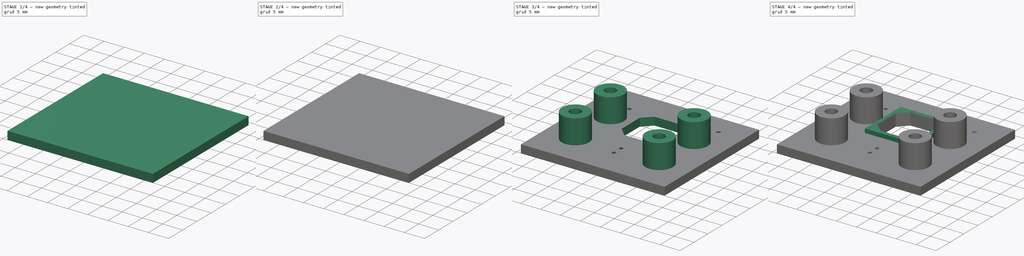
[diagram: build sequence overview — one tinted view per stage of 4, left to right]
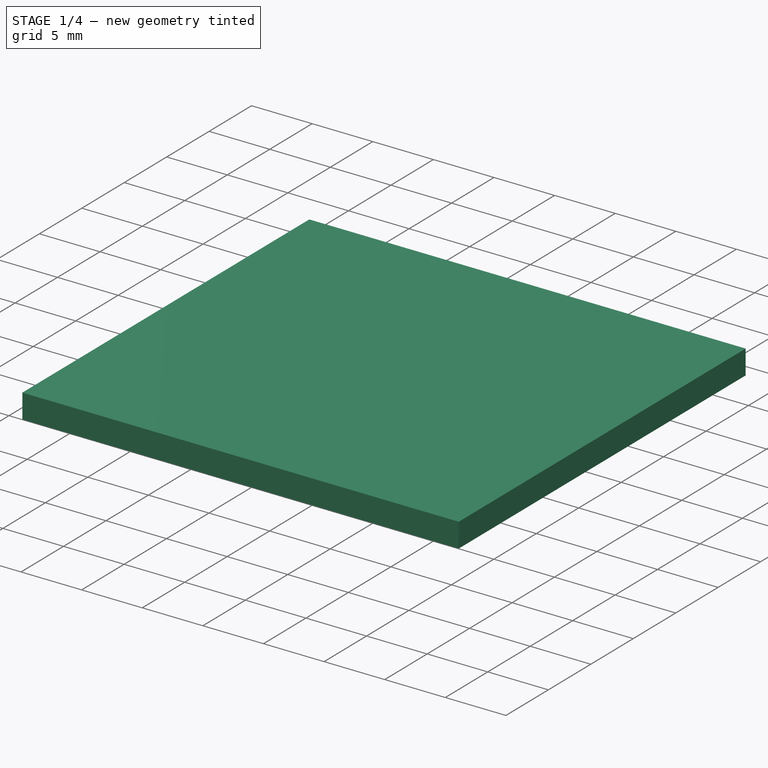
[diagram: stage 1 of 4 — iso view after this stage's code; geometry added in this stage tinted green]
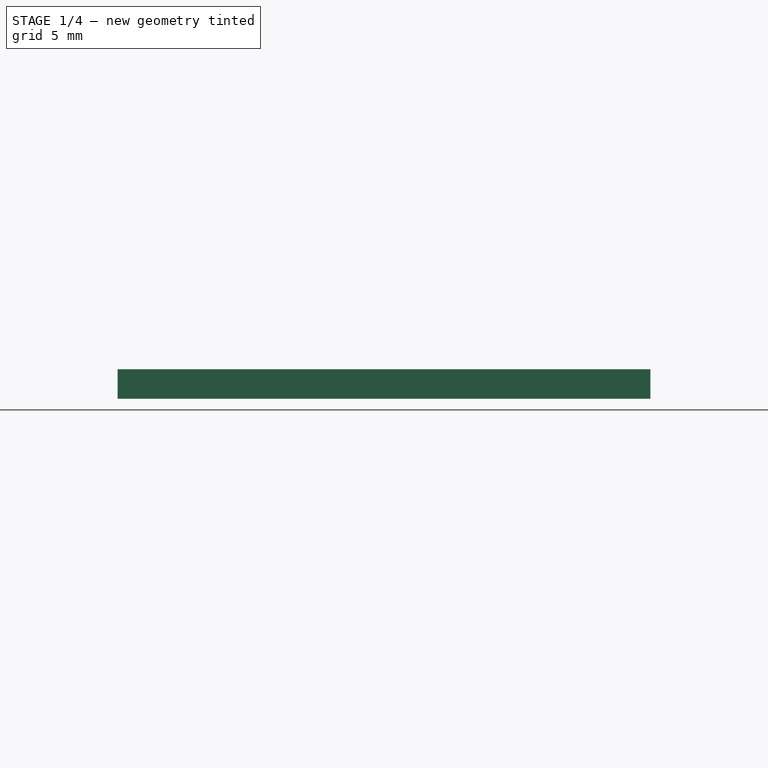
[diagram: stage 1 of 4 — front view after this stage's code; geometry added in this stage tinted green]
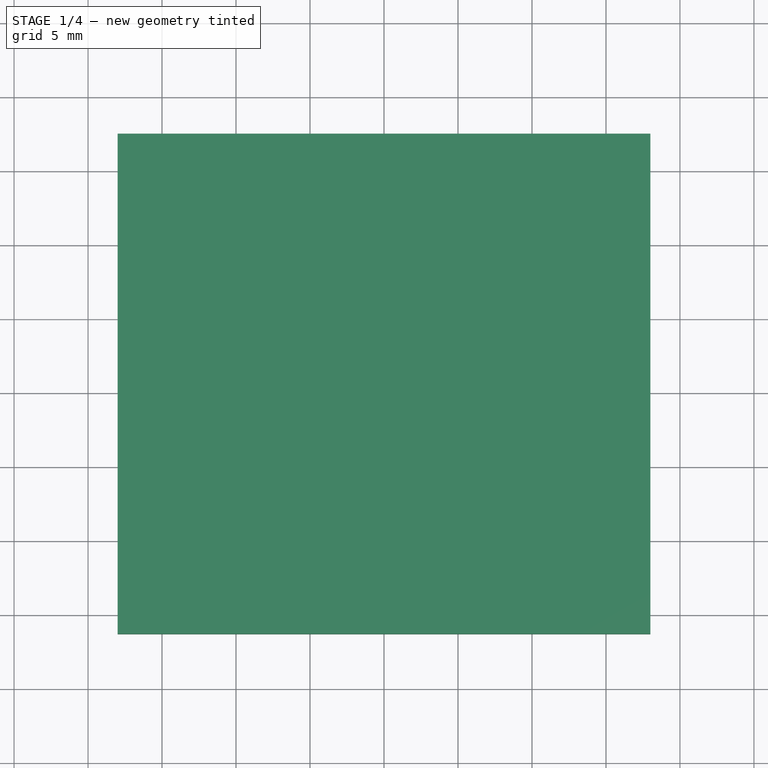
[diagram: stage 1 of 4 — top view after this stage's code; geometry added in this stage tinted green]
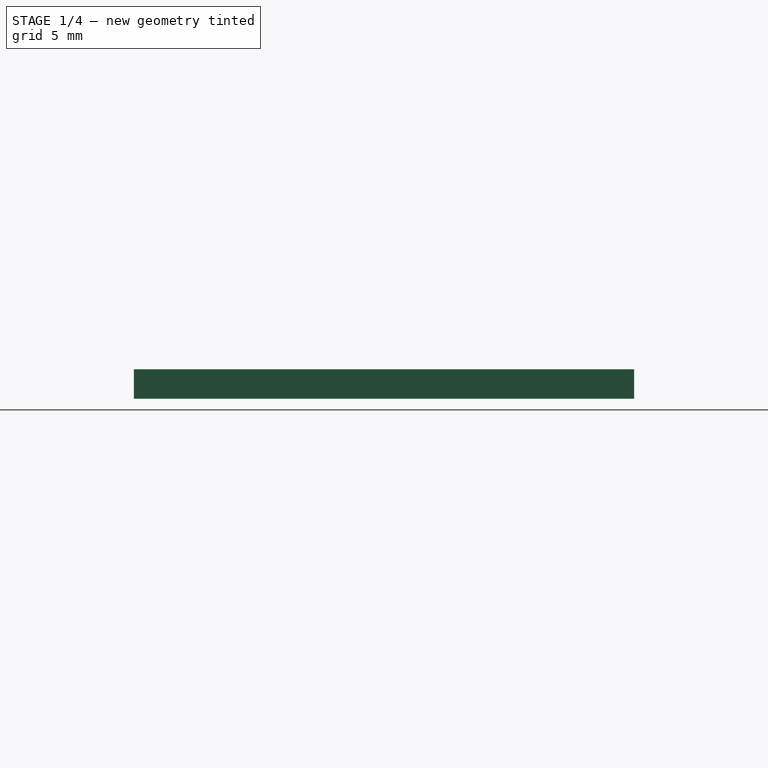
[diagram: stage 1 of 4 — right view after this stage's code; geometry added in this stage tinted green]
FCSTD DOCUMENT  (FreeCAD 2024.1R35694 (Git))
Label: probe-cam
License: All rights reserved
LicenseURL: https://en.wikipedia.org/wiki/All_rights_reserved
objects: Sketcher::SketchObject×10, PartDesign::Pad×3, PartDesign::Plane×3, PartDesign::Groove×3, PartDesign::Pocket×2, Image::ImagePlane×1, Spreadsheet::Sheet×1, PartDesign::Fillet×1, PartDesign::Body×1
note: 32 computed .brp shape members not serialized (recipe doc carries the construction recipe); baked Part::Feature solids carry a one-line shape summary decoded from their .brp

FEATURE [Image::ImagePlane] Screenshot_from_2024_02_23_09_25_00  label="Screenshot from 2024-02-23 09-25-00"
  Placement = pos=(2,2,0) rot=(0,0,1;0rad)
  XSize = 65.0233
  YSize = 47.6637
FEATURE [Sketcher::SketchObject] Sketch001  label="Camera"
  FullyConstrained = true
  MapMode = 5
  Support = -> [XY_Plane]
  sketch-geometry (8):
    g0: LineSegment StartX=-5.4 StartY=5.4 StartZ=0 EndX=-5.4 EndY=-5.4 EndZ=0
    g1: LineSegment StartX=-5.4 StartY=-5.4 StartZ=0 EndX=5.4 EndY=-5.4 EndZ=0
    g2: LineSegment StartX=5.4 StartY=-5.4 StartZ=0 EndX=5.4 EndY=5.4 EndZ=0
    g3: LineSegment StartX=5.4 StartY=5.4 StartZ=0 EndX=-5.4 EndY=5.4 EndZ=0
    g4: GeomPoint X=0 Y=5.4 Z=0
    g5: GeomPoint X=-5.4 Y=0 Z=0
    g6: Circle CenterX=0 CenterY=0 CenterZ=0 NormalX=0 NormalY=0 NormalZ=1 AngleXU=0 Radius=1.3
    g7: Circle CenterX=0 CenterY=0 CenterZ=0 NormalX=0 NormalY=0 NormalZ=1 AngleXU=0 Radius=2.875
  constraints (18):
    c: Coincident(g0,g1)
    c: Coincident(g1,g2)
    c: Coincident(g2,g3)
    c: Coincident(g3,g0)
    c: Vertical(g0)
    c: Horizontal(g1)
    c: DistanceX(g3,g3) = 10.8
    c: DistanceY(g2,g2) = 10.8
    c: PointOnObject(g4,g3)
    c: PointOnObject(g5,g0)
    c: Radius(g7) = 2.875
    c: Coincident(g7,g6)
    c: Horizontal(g6,g5)
    c: Vertical(g6,g4)
    c: Diameter(g6) = 2.6
    c: Symmetric(g0,g1,g6)
    c: Symmetric(g2,g0,g6)
    c: Coincident(g6,g-1)
FEATURE [Sketcher::SketchObject] Sketch002  label="PCB Outline"
  ExternalGeometry = -> [Sketch001]
  FullyConstrained = false
  MapMode = 5
  Support = -> [XY_Plane]
  sketch-geometry (10):
    g0: LineSegment StartX=-12.5 StartY=9.462 StartZ=0 EndX=-12.5 EndY=-14.4 EndZ=0
    g1: LineSegment StartX=-12.5 StartY=-14.4 StartZ=0 EndX=12.5 EndY=-14.4 EndZ=0
    g2: LineSegment StartX=12.5 StartY=-14.4 StartZ=0 EndX=12.5 EndY=9.462 EndZ=0
    g3: LineSegment StartX=12.5 StartY=9.462 StartZ=0 EndX=-12.5 EndY=9.462 EndZ=0
    g4: GeomPoint X=12.5 Y=-14.4 Z=0
    g5: GeomPoint X=-12.5 Y=-14.4 Z=0
    g6: LineSegment StartX=-18 StartY=12.5275 StartZ=0 EndX=-18 EndY=-21.2818 EndZ=0
    g7: LineSegment StartX=-18 StartY=-21.2818 StartZ=0 EndX=18 EndY=-21.2818 EndZ=0
    g8: LineSegment StartX=18 StartY=-21.2818 StartZ=0 EndX=18 EndY=12.5275 EndZ=0
    g9: LineSegment StartX=18 StartY=12.5275 StartZ=0 EndX=-18 EndY=12.5275 EndZ=0
  constraints (21):
    c: Vertical(g0)
    c: Vertical(g2)
    c: DistanceX(g3,g3) = 25
    c: Coincident(g3,g0)
    c: Coincident(g3,g2)
    c: DistanceY(g5,g0) = 23.862
    c: Horizontal(g1)
    c: Symmetric(g0,g2,g-2)
    c: Distance(g-3,g1) = 14.4
    c: Coincident(g0,g5)
    c: Coincident(g0,g1)
    c: Coincident(g1,g4)
    c: Coincident(g2,g1)
    c: Coincident(g6,g7)
    c: Coincident(g7,g8)
    c: Coincident(g8,g9)
    c: Coincident(g9,g6)
    c: Vertical(g6)
    c: Vertical(g8)
    c: Horizontal(g9)
    c: Symmetric(g6,g7,g-2)
FEATURE [Sketcher::SketchObject] Sketch003  label="Mount"
  ExternalGeometry = -> [Sketch002]
  FullyConstrained = true
  MapMode = 5
  Support = -> [XY_Plane]
  expr: Constraints[0] = <<Spreadsheet>>.cam_screw_hole / 2
  expr: Constraints[12] = <<Spreadsheet>>.cam_screw_hole + <<Spreadsheet>>.cam_screw_hole_thickness * 2
  expr: Constraints[14] = <<Spreadsheet>>.cam_screw_hole + <<Spreadsheet>>.cam_screw_hole_thickness * 2
  expr: Constraints[17] = <<Spreadsheet>>.cam_screw_hole + <<Spreadsheet>>.cam_screw_hole_thickness * 2
  expr: Constraints[18] = <<Spreadsheet>>.cam_screw_hole + <<Spreadsheet>>.cam_screw_hole_thickness * 2
  expr: Constraints[1] = <<Spreadsheet>>.cam_screw_hole / 2
  expr: Constraints[2] = <<Spreadsheet>>.cam_screw_hole / 2
  expr: Constraints[3] = <<Spreadsheet>>.cam_screw_hole / 2
  sketch-geometry (8):
    g0: Circle CenterX=-10.5 CenterY=0 CenterZ=0 NormalX=0 NormalY=0 NormalZ=1 AngleXU=0 Radius=1.4
    g1: Circle CenterX=10.5 CenterY=0 CenterZ=0 NormalX=0 NormalY=0 NormalZ=1 AngleXU=0 Radius=1.4
    g2: Circle CenterX=10.5 CenterY=-12.5 CenterZ=0 NormalX=0 NormalY=0 NormalZ=1 AngleXU=0 Radius=1.4
    g3: Circle CenterX=-10.5 CenterY=-12.5 CenterZ=0 NormalX=0 NormalY=0 NormalZ=1 AngleXU=0 Radius=1.4
    g4: Circle CenterX=-10.5 CenterY=-12.5 CenterZ=0 NormalX=0 NormalY=0 NormalZ=1 AngleXU=0 Radius=3.4
    g5: Circle CenterX=10.5 CenterY=-12.5 CenterZ=0 NormalX=0 NormalY=0 NormalZ=1 AngleXU=0 Radius=3.4
    g6: Circle CenterX=-10.5 CenterY=0 CenterZ=0 NormalX=0 NormalY=0 NormalZ=1 AngleXU=0 Radius=3.4
    g7: Circle CenterX=10.5 CenterY=0 CenterZ=0 NormalX=0 NormalY=0 NormalZ=1 AngleXU=0 Radius=3.4
  constraints (19):
    c: Radius(g0) = 1.4
    c: Radius(g1) = 1.4
    c: Radius(g2) = 1.4
    c: Radius(g3) = 1.4
    c: Horizontal(g0,g1)
    c: Vertical(g1,g2)
    c: Vertical(g3,g0)
    c: DistanceX(g0,g1) = 21
    c: DistanceY(g3,g0) = 12.5
    c: Horizontal(g2,g3)
    c: Symmetric(g0,g1,g-1)
    c: Coincident(g4,g3)
    c: Diameter(g4) = 6.8
    c: Coincident(g5,g2)
    c: Diameter(g5) = 6.8
    c: Coincident(g6,g0)
    c: Coincident(g7,g1)
    c: Diameter(g7) = 6.8
    c: Diameter(g6) = 6.8
FEATURE [PartDesign::Pad] Pad
  Direction = (0,0,1)
  Length = 2
  Length2 = 10
  Profile = -> Sketch002
  ReferenceAxis = -> Sketch002 [N_Axis]
  Refine = true
  Type = 0
FEATURE [Sketcher::SketchObject] Sketch004  label="led indent"
  FullyConstrained = false
  MapMode = 5
  Support = -> [XY_Plane]
  sketch-geometry (9):
    g0: Circle CenterX=0 CenterY=-12.3876 CenterZ=0 NormalX=0 NormalY=0 NormalZ=1 AngleXU=0 Radius=1.9
    g1: Circle CenterX=10.728 CenterY=6.19379 CenterZ=0 NormalX=0 NormalY=0 NormalZ=1 AngleXU=0 Radius=1.9
    g2: Circle CenterX=-10.728 CenterY=6.19379 CenterZ=0 NormalX=0 NormalY=0 NormalZ=1 AngleXU=0 Radius=1.9
    g3: LineSegment StartX=-10.728 StartY=6.19379 StartZ=0 EndX=10.728 EndY=6.19379 EndZ=0
    g4: LineSegment StartX=10.728 StartY=6.19379 StartZ=0 EndX=0 EndY=-12.3876 EndZ=0
    g5: LineSegment StartX=0 StartY=-12.3876 StartZ=0 EndX=-10.728 EndY=6.19379 EndZ=0
    g6: LineSegment StartX=-10.728 StartY=6.19379 StartZ=0 EndX=0 EndY=0 EndZ=0
    g7: LineSegment StartX=0 StartY=0 StartZ=0 EndX=10.728 EndY=6.19379 EndZ=0
    g8: LineSegment StartX=0 StartY=0 StartZ=0 EndX=0 EndY=-12.3876 EndZ=0
  constraints (20):
    c: PointOnObject(g0,g-2)
    c: Diameter(g0) = 3.8
    c: Equal(g0,g1)
    c: Equal(g0,g2)
    c: Coincident(g3,g2)
    c: Coincident(g3,g1)
    c: Horizontal(g3)
    c: Coincident(g4,g1)
    c: Coincident(g4,g0)
    c: Angle(g5,g3) = 1.0472
    c: Angle(g3,g4) = 1.0472
    c: Coincident(g0,g5)
    c: Coincident(g2,g5)
    c: Coincident(g6,g2)
    c: Coincident(g6,g-1)
    c: Coincident(g7,g6)
    c: Coincident(g7,g1)
    c: Coincident(g8,g6)
    c: Coincident(g8,g0)
    c: Equal(g7,g8)
FEATURE [Sketcher::SketchObject] Sketch005
  ExternalGeometry = -> [Sketch001]
  FullyConstrained = false
  MapMode = 5
  Support = -> [XY_Plane]
  sketch-geometry (9):
    g0: LineSegment StartX=-5.4 StartY=-3.23293 StartZ=0 EndX=-3.22051 EndY=-5.4 EndZ=0
    g1: LineSegment StartX=3.23293 StartY=-5.4 StartZ=0 EndX=5.4 EndY=-3.22051 EndZ=0
    g2: LineSegment StartX=5.4 StartY=3.23293 StartZ=0 EndX=3.22051 EndY=5.4 EndZ=0
    g3: LineSegment StartX=-3.23293 StartY=5.4 StartZ=0 EndX=-5.4 EndY=3.22051 EndZ=0
    g4: GeomPoint X=0 Y=0 Z=0
    g5: LineSegment StartX=-3.22051 StartY=-5.4 StartZ=0 EndX=3.23293 EndY=-5.4 EndZ=0
    g6: LineSegment StartX=-5.4 StartY=-3.23293 StartZ=0 EndX=-5.4 EndY=3.22051 EndZ=0
    g7: LineSegment StartX=-3.23293 StartY=5.4 StartZ=0 EndX=3.22051 EndY=5.4 EndZ=0
    g8: LineSegment StartX=5.4 StartY=3.23293 StartZ=0 EndX=5.4 EndY=-3.22051 EndZ=0
  constraints (21):
    c: Coincident(g4,g-1)
    c: Perpendicular(g3,g2)
    c: Perpendicular(g0,g3)
    c: Perpendicular(g1,g0)
    c: PointOnObject(g5,g-6)
    c: PointOnObject(g5,g-6)
    c: PointOnObject(g7,g2)
    c: Horizontal(g7)
    c: Vertical(g8)
    c: PointOnObject(g8,g-5)
    c: PointOnObject(g7,g-4)
    c: PointOnObject(g6,g-3)
    c: PointOnObject(g6,g-3)
    c: Coincident(g3,g6)
    c: Coincident(g0,g6)
    c: Coincident(g0,g5)
    c: Coincident(g1,g5)
    c: Coincident(g1,g8)
    c: Coincident(g2,g8)
    c: PointOnObject(g2,g-4)
    c: Coincident(g3,g7)
FEATURE [Spreadsheet::Sheet] Spreadsheet
  cells = B3='leg width; C3(leg_width)=0.9; B4='leg height; C4(leg_height)=0.8; B5='cam mounting hole diameter; C5(cam_screw_hole)=2.8; B6='cam mounting hole thickness; C6(cam_screw_hole_thickness)=2; B13='eef mount hole size; C13=4.7; B14='eef mount hole distance; C14(eef_dist)=7.08
FEATURE [PartDesign::Plane] DatumPlane
  Length = 60
  MapMode = 6
  Placement = pos=(1.9,-12.3876,0) rot=(1,0,0;1.5708rad)
  ResizeMode = 0
  Support = -> [Sketch004,Pad]
  Width = 60
FEATURE [PartDesign::Plane] DatumPlane001
  Length = 60
  MapMode = 6
  Placement = pos=(-8.82796,6.19379,0) rot=(1,0,0;1.5708rad)
  ResizeMode = 0
  Support = -> [Sketch004,Pad]
  Width = 60
FEATURE [Sketcher::SketchObject] Sketch006  label="indend 1"
  ExternalGeometry = -> [Sketch004]
  FullyConstrained = true
  MapMode = 1
  Placement = pos=(1.9,-12.3876,0) rot=(1,0,0;1.5708rad)
  Support = -> [Sketch004]
  sketch-geometry (3):
    g0: LineSegment StartX=-3.8 StartY=1.9e-15 StartZ=0 EndX=-1.9 EndY=0 EndZ=0
    g1: ArcOfCircle CenterX=-1.9 CenterY=-0.5 CenterZ=0 NormalX=0 NormalY=0 NormalZ=1 AngleXU=0 Radius=1.96469 StartAngle=1.5708 EndAngle=2.88427
    g2: LineSegment StartX=-1.9 StartY=0 StartZ=0 EndX=-1.9 EndY=1.46469 EndZ=0
  constraints (8):
    c: Coincident(g0,g-3)
    c: Coincident(g1,g0)
    c: Vertical(g2)
    c: Coincident(g1,g2)
    c: Coincident(g0,g2)
    c: Vertical(g0,g1)
    c: DistanceY(g1,g0) = 0.5
    c: Symmetric(g0,g-3,g0)
FEATURE [Sketcher::SketchObject] Sketch007  label="indent 2"
  ExternalGeometry = -> [Sketch004]
  FullyConstrained = true
  MapMode = 1
  Placement = pos=(12.628,6.19379,0) rot=(1,0,0;1.5708rad)
  Support = -> [Sketch004]
  expr: Constraints[5] = Sketch006.Constraints[6]
  sketch-geometry (3):
    g0: LineSegment StartX=-25.2559 StartY=0 StartZ=0 EndX=-23.3559 EndY=0 EndZ=0
    g1: ArcOfCircle CenterX=-23.3559 CenterY=-0.5 CenterZ=0 NormalX=0 NormalY=0 NormalZ=1 AngleXU=0 Radius=1.96469 StartAngle=1.5708 EndAngle=2.88427
    g2: LineSegment StartX=-23.3559 StartY=0 StartZ=0 EndX=-23.3559 EndY=1.46469 EndZ=0
  constraints (8):
    c: Coincident(g1,g0)
    c: Vertical(g2)
    c: Coincident(g1,g2)
    c: Coincident(g0,g2)
    c: Vertical(g0,g1)
    c: DistanceY(g1,g0) = 0.5
    c: Coincident(g0,g-4)
    c: Symmetric(g0,g-4,g0)
FEATURE [Sketcher::SketchObject] Sketch008  label="indent 3"
  ExternalGeometry = -> [Sketch004]
  FullyConstrained = true
  MapMode = 5
  Placement = pos=(-8.82796,6.19379,0) rot=(1,0,0;1.5708rad)
  Support = -> [DatumPlane001]
  expr: Constraints[3] = Sketch007.Constraints[5]
  sketch-geometry (3):
    g0: LineSegment StartX=17.6559 StartY=0 StartZ=0 EndX=19.5559 EndY=0 EndZ=0
    g1: ArcOfCircle CenterX=19.5559 CenterY=-0.5 CenterZ=0 NormalX=0 NormalY=0 NormalZ=1 AngleXU=0 Radius=1.96469 StartAngle=1.5708 EndAngle=2.88427
    g2: LineSegment StartX=19.5559 StartY=0 StartZ=0 EndX=19.5559 EndY=1.46469 EndZ=0
  constraints (8):
    c: Vertical(g2)
    c: Coincident(g1,g2)
    c: Vertical(g0,g1)
    c: DistanceY(g1,g0) = 0.5
    c: Coincident(g0,g2)
    c: Coincident(g1,g0)
    c: Coincident(g0,g-5)
    c: Symmetric(g0,g-5,g0)
FEATURE [PartDesign::Groove] Groove  label="led indent 1"
  Angle = 360
  Angle2 = 60
  Axis = (0,2e-16,1)
  Base = (2e-16,-12.3876,0)
  BaseFeature = -> Pad
  Profile = -> Sketch006
  ReferenceAxis = -> Sketch006 [Edge2]
  Refine = true
  Reversed = true
  Type = 0
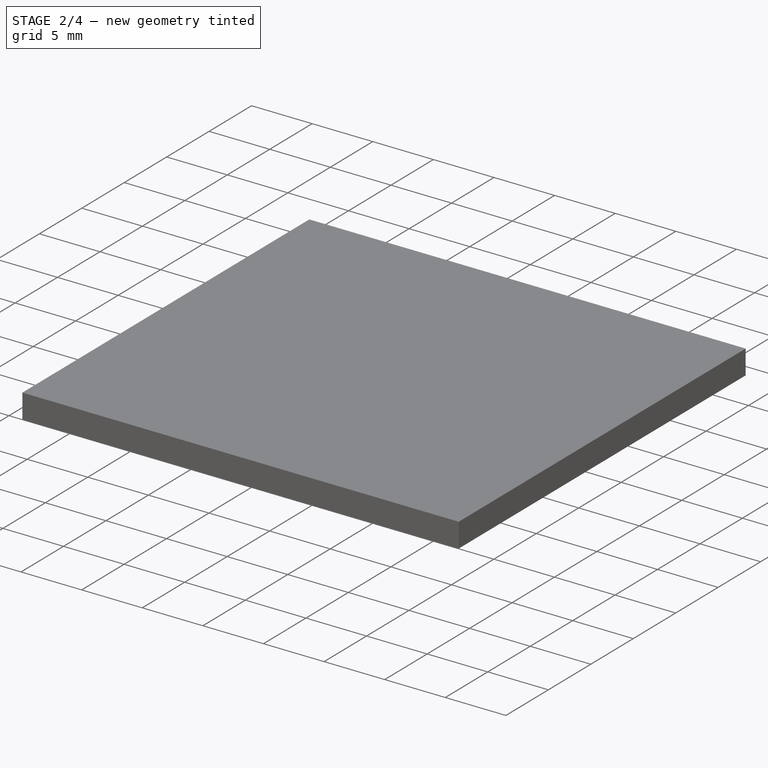
[diagram: stage 2 of 4 — iso view after this stage's code; geometry added in this stage tinted green]
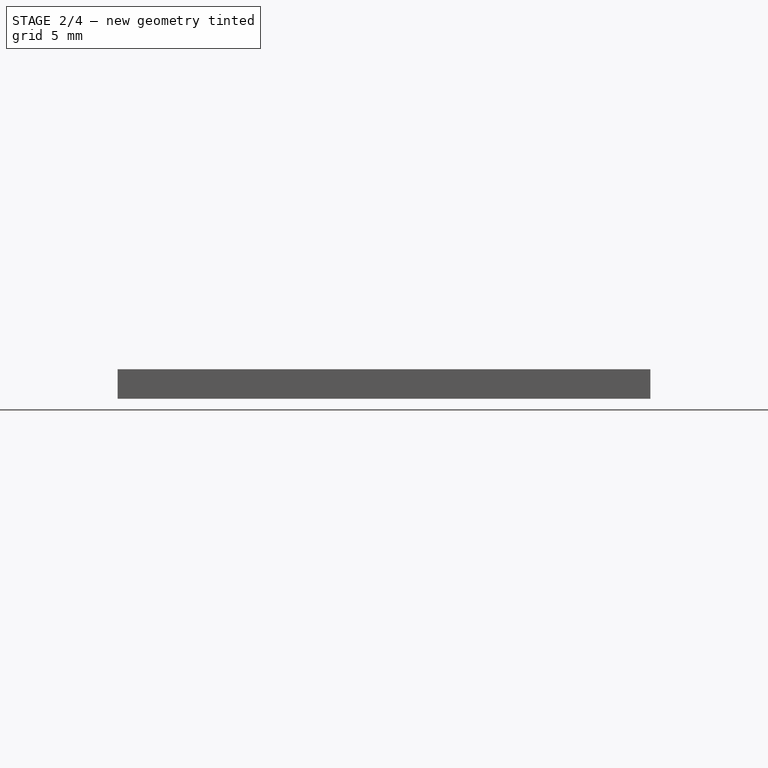
[diagram: stage 2 of 4 — front view after this stage's code; geometry added in this stage tinted green]
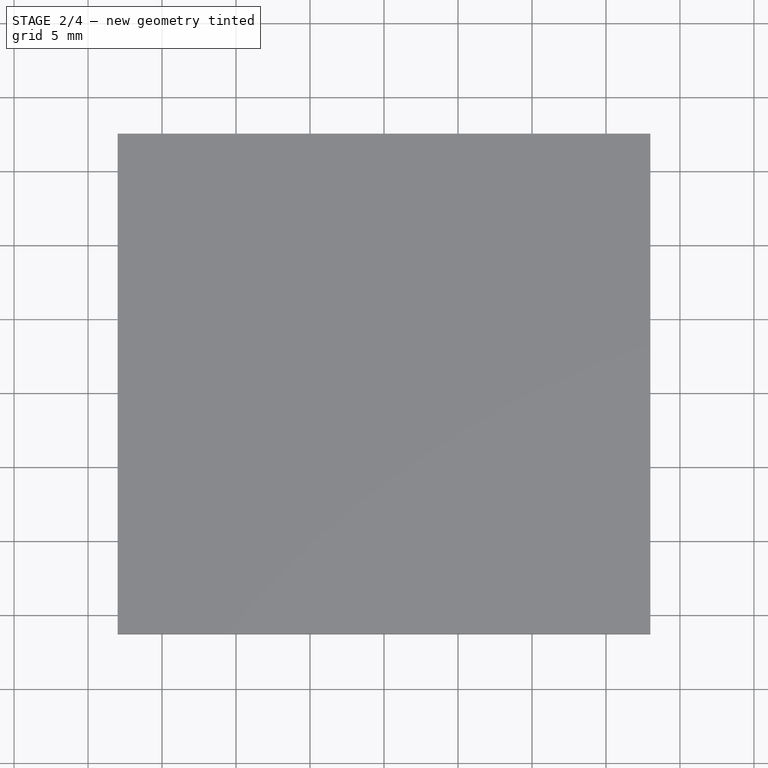
[diagram: stage 2 of 4 — top view after this stage's code; geometry added in this stage tinted green]
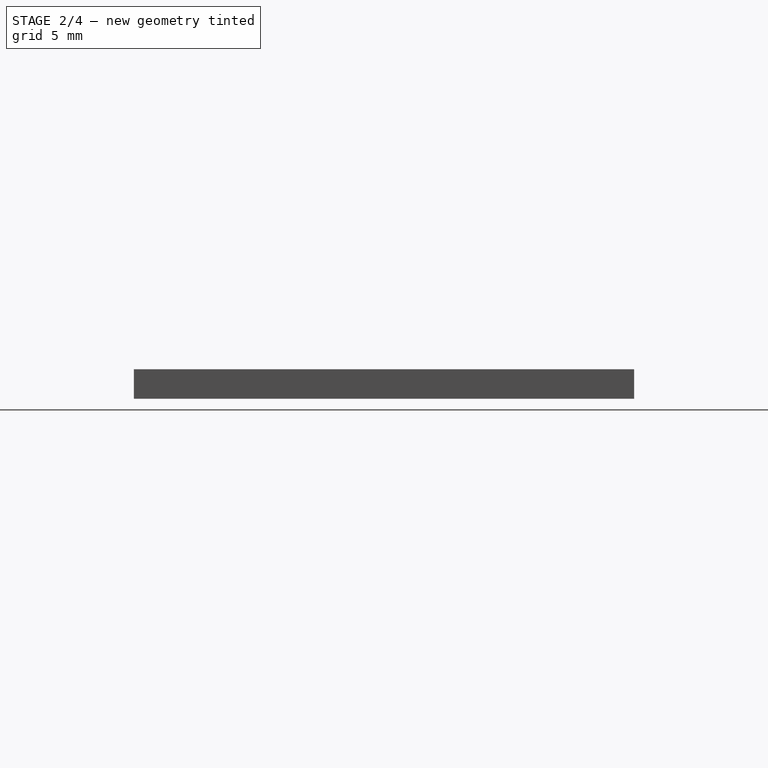
[diagram: stage 2 of 4 — right view after this stage's code; geometry added in this stage tinted green]
FEATURE [PartDesign::Groove] Groove001  label="led indent 2"
  Angle = 360
  Angle2 = 60
  Axis = (0,2e-16,1)
  Base = (-10.728,6.19379,0)
  BaseFeature = -> Groove
  Profile = -> Sketch007
  ReferenceAxis = -> Sketch007 [Edge2]
  Refine = true
  Reversed = true
  Type = 0
FEATURE [PartDesign::Groove] Groove002  label="led indent 3"
  Angle = 360
  Angle2 = 60
  Axis = (0,2e-16,1)
  Base = (10.728,6.19379,0)
  BaseFeature = -> Groove001
  Profile = -> Sketch008
  ReferenceAxis = -> Sketch008 [Edge2]
  Refine = true
  Type = 0
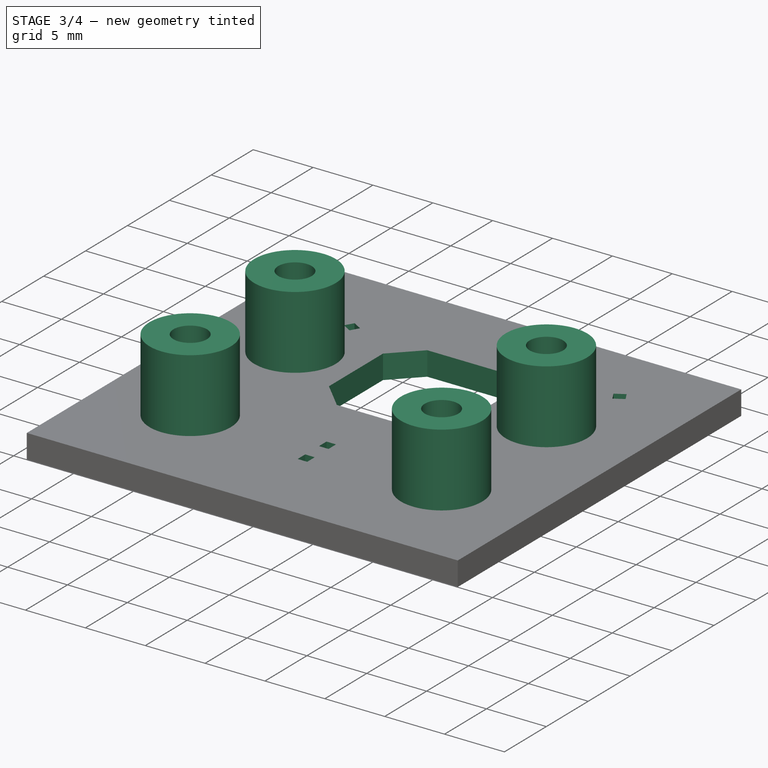
[diagram: stage 3 of 4 — iso view after this stage's code; geometry added in this stage tinted green]
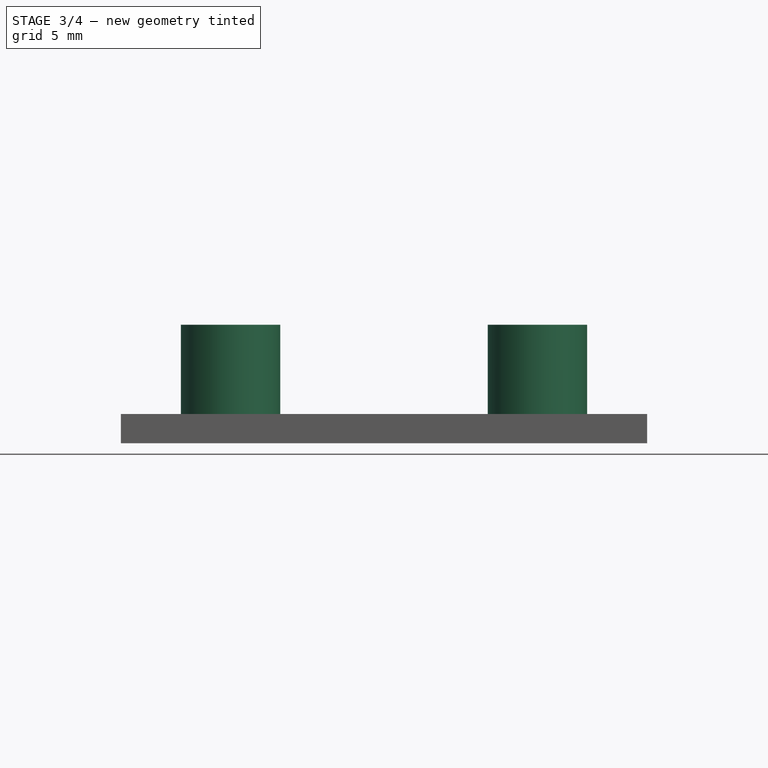
[diagram: stage 3 of 4 — front view after this stage's code; geometry added in this stage tinted green]
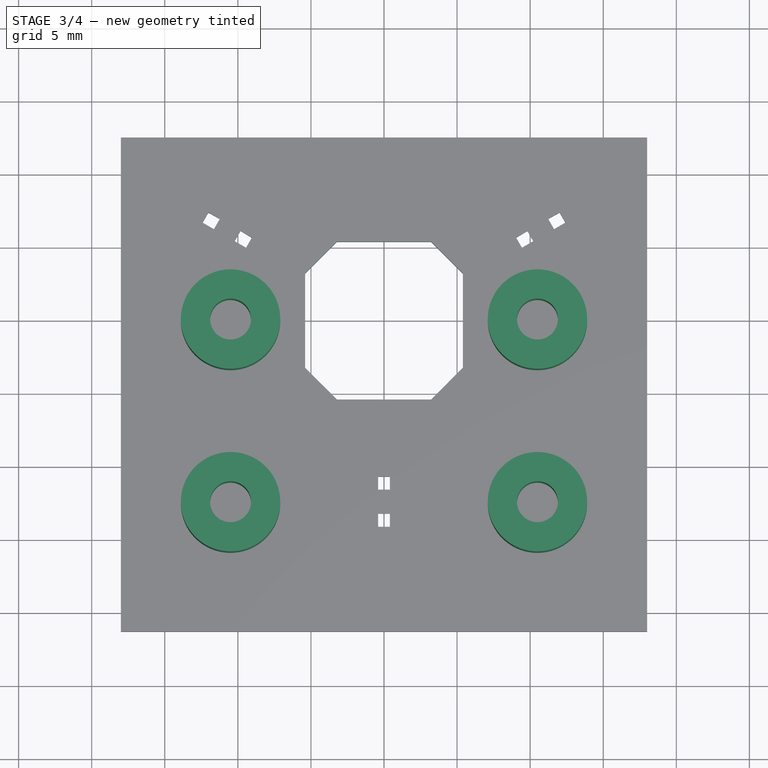
[diagram: stage 3 of 4 — top view after this stage's code; geometry added in this stage tinted green]
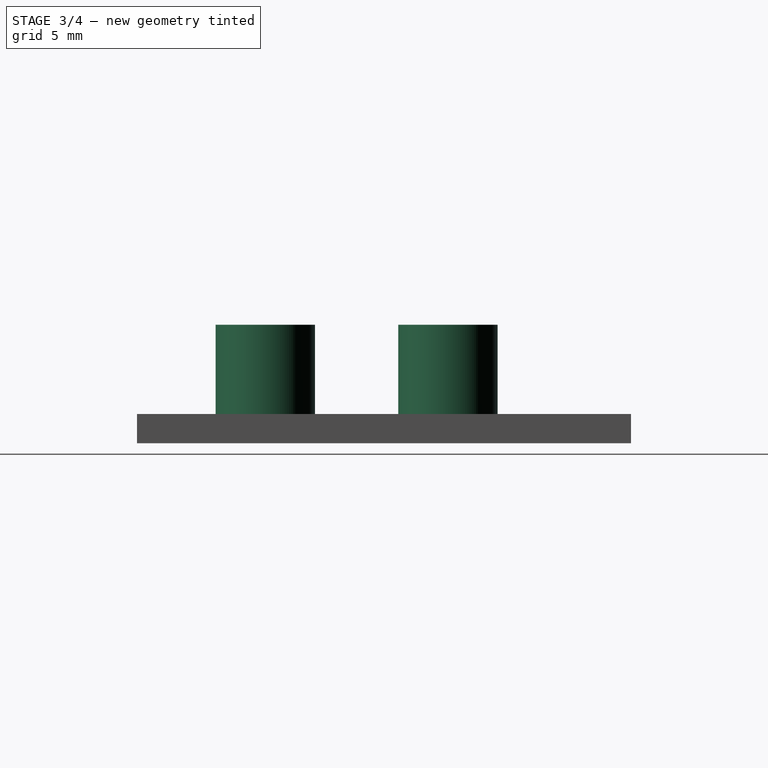
[diagram: stage 3 of 4 — right view after this stage's code; geometry added in this stage tinted green]
FEATURE [PartDesign::Pocket] Pocket002
  BaseFeature = -> Groove002
  Direction = (0,0,-1)
  Length = 5
  Length2 = 5
  Profile = -> Sketch005
  ReferenceAxis = -> Sketch005 [N_Axis]
  Refine = true
  Reversed = true
  Type = 2
FEATURE [PartDesign::Pad] Pad001  label="Screw Hole Cylinders"
  BaseFeature = -> Pocket002
  Direction = (0,0,1)
  Length = 8.1
  Length2 = 0
  Profile = -> Sketch003
  ReferenceAxis = -> Sketch003 [N_Axis]
  Refine = true
  Type = 0
FEATURE [Sketcher::SketchObject] Sketch  label="LED001"
  ExternalGeometry = -> [Sketch004]
  FullyConstrained = true
  MapMode = 5
  Placement = pos=(0,0,0) rot=(1,0,0;3.14159rad)
  Support = -> [Pad001]
  expr: Constraints[10] = <<Spreadsheet>>.leg_width
  expr: Constraints[13] = <<Spreadsheet>>.leg_height
  expr: Constraints[4] = <<Spreadsheet>>.leg_width
  expr: Constraints[5] = <<Spreadsheet>>.leg_height
  sketch-geometry (33):
    g0: LineSegment StartX=-0.4 StartY=10.6676 StartZ=0 EndX=0.4 EndY=10.6676 EndZ=0
    g1: LineSegment StartX=0.4 StartY=10.6676 StartZ=0 EndX=0.4 EndY=11.5676 EndZ=0
    g2: LineSegment StartX=0.4 StartY=11.5676 StartZ=0 EndX=-0.4 EndY=11.5676 EndZ=0
    g3: LineSegment StartX=-0.4 StartY=11.5676 StartZ=0 EndX=-0.4 EndY=10.6676 EndZ=0
    g4: LineSegment StartX=0.4 StartY=13.2076 StartZ=0 EndX=-0.4 EndY=13.2076 EndZ=0
    g5: LineSegment StartX=-0.4 StartY=13.2076 StartZ=0 EndX=-0.4 EndY=14.1076 EndZ=0
    g6: LineSegment StartX=-0.4 StartY=14.1076 StartZ=0 EndX=0.4 EndY=14.1076 EndZ=0
    g7: LineSegment StartX=0.4 StartY=14.1076 StartZ=0 EndX=0.4 EndY=13.2076 EndZ=0
    g8: GeomPoint X=0 Y=11.1176 Z=0
    g9: GeomPoint X=0 Y=13.6576 Z=0
    g10: LineSegment StartX=0 StartY=13.6576 StartZ=0 EndX=0 EndY=11.1176 EndZ=0
    g11: LineSegment StartX=12.0175 StartY=-7.4002 StartZ=0 EndX=12.4175 EndY=-6.70738 EndZ=0
    g12: LineSegment StartX=12.4175 StartY=-6.70738 StartZ=0 EndX=11.6381 EndY=-6.25738 EndZ=0
    g13: LineSegment StartX=11.6381 StartY=-6.25738 StartZ=0 EndX=11.2381 EndY=-6.9502 EndZ=0
    g14: LineSegment StartX=11.2381 StartY=-6.9502 StartZ=0 EndX=12.0175 EndY=-7.4002 EndZ=0
    g15: LineSegment StartX=10.2178 StartY=-5.43738 StartZ=0 EndX=9.81782 EndY=-6.1302 EndZ=0
    g16: LineSegment StartX=9.81782 StartY=-6.1302 StartZ=0 EndX=9.0384 EndY=-5.6802 EndZ=0
    g17: LineSegment StartX=9.0384 StartY=-5.6802 StartZ=0 EndX=9.4384 EndY=-4.98738 EndZ=0
    g18: LineSegment StartX=9.4384 StartY=-4.98738 StartZ=0 EndX=10.2178 EndY=-5.43738 EndZ=0
    g19: GeomPoint X=11.8278 Y=-6.82879 Z=0
    g20: GeomPoint X=9.62811 Y=-5.55879 Z=0
    g21: LineSegment StartX=9.62811 StartY=-5.55879 StartZ=0 EndX=11.8278 EndY=-6.82879 EndZ=0
    g22: LineSegment StartX=-11.2381 StartY=-6.9502 StartZ=0 EndX=-11.6381 EndY=-6.25738 EndZ=0
    g23: LineSegment StartX=-11.6381 StartY=-6.25738 StartZ=0 EndX=-12.4175 EndY=-6.70738 EndZ=0
    g24: LineSegment StartX=-12.4175 StartY=-6.70738 StartZ=0 EndX=-12.0175 EndY=-7.4002 EndZ=0
    g25: LineSegment StartX=-12.0175 StartY=-7.4002 StartZ=0 EndX=-11.2381 EndY=-6.9502 EndZ=0
    g26: LineSegment StartX=-9.81782 StartY=-6.1302 StartZ=0 EndX=-10.2178 EndY=-5.43738 EndZ=0
    g27: LineSegment StartX=-10.2178 StartY=-5.43738 StartZ=0 EndX=-9.4384 EndY=-4.98738 EndZ=0
    g28: LineSegment StartX=-9.4384 StartY=-4.98738 StartZ=0 EndX=-9.0384 EndY=-5.6802 EndZ=0
    g29: LineSegment StartX=-9.0384 StartY=-5.6802 StartZ=0 EndX=-9.81782 EndY=-6.1302 EndZ=0
    g30: GeomPoint X=-11.8278 Y=-6.82879 Z=0
    g31: GeomPoint X=-9.62811 Y=-5.55879 Z=0
    g32: LineSegment StartX=-9.62811 StartY=-5.55879 StartZ=0 EndX=-11.8278 EndY=-6.82879 EndZ=0
  constraints (75):
    c: Coincident(g0,g1)
    c: Coincident(g1,g2)
    c: Coincident(g2,g3)
    c: Coincident(g3,g0)
    c: Distance(g0,g2) = 0.9
    c: Distance(g1,g3) = 0.8
    c: Coincident(g4,g5)
    c: Coincident(g5,g6)
    c: Coincident(g6,g7)
    c: Coincident(g7,g4)
    c: Distance(g4,g6) = 0.9
    c: Perpendicular(g0,g3)
    c: Perpendicular(g5,g6)
    c: Distance(g6) = 0.8
    c: Symmetric(g2,g0,g8)
    c: Symmetric(g0,g1,g8)
    c: Symmetric(g5,g4,g9)
    c: Symmetric(g4,g6,g9)
    c: Coincident(g10,g9)
    c: Coincident(g10,g8)
    c: Perpendicular(g2,g10)
    c: Perpendicular(g10,g4)
    c: Symmetric(g9,g8,g-3)
    c: Distance(g10) = 2.54
    c: Coincident(g11,g12)
    c: Coincident(g22,g23)
    c: Coincident(g12,g13)
    c: Coincident(g23,g24)
    c: Coincident(g13,g14)
    c: Coincident(g24,g25)
    c: Coincident(g14,g11)
    c: Coincident(g25,g22)
    c: Coincident(g15,g16)
    c: Coincident(g26,g27)
    c: Coincident(g16,g17)
    c: Coincident(g27,g28)
    c: Coincident(g17,g18)
    c: Coincident(g28,g29)
    c: Coincident(g18,g15)
    c: Coincident(g29,g26)
    c: Perpendicular(g11,g14)
    c: Perpendicular(g22,g25)
    c: Perpendicular(g16,g17)
    c: Perpendicular(g27,g28)
    c: Symmetric(g13,g11,g19)
    c: Symmetric(g24,g22,g30)
    c: Symmetric(g11,g12,g19)
    c: Symmetric(g22,g23,g30)
    c: Symmetric(g16,g15,g20)
    c: Symmetric(g27,g26,g31)
    c: Symmetric(g15,g17,g20)
    c: Symmetric(g26,g28,g31)
    c: Coincident(g21,g20)
    c: Coincident(g32,g31)
    c: Coincident(g21,g19)
    c: Coincident(g32,g30)
    c: Perpendicular(g13,g21)
    c: Perpendicular(g24,g32)
    c: Perpendicular(g21,g15)
    c: Perpendicular(g32,g26)
    c: Distance(g21) = 2.54
    c: Symmetric(g20,g19,g-4)
    c: PointOnObject(g-1,g21)
    c: PointOnObject(g-1,g10)
    c: PointOnObject(g-1,g32)
    c: Symmetric(g30,g31,g-5)
    c: Equal(g22,g28)
    c: Equal(g18,g7)
    c: Equal(g18,g12)
    c: Equal(g17,g6)
    c: Equal(g17,g11)
    c: Equal(g28,g17)
    c: Equal(g27,g25)
    c: Equal(g27,g18)
    c: Equal(g32,g21)
FEATURE [PartDesign::Pocket] Pocket  label="led leg holes"
  BaseFeature = -> Pad001
  Direction = (0,0,1)
  Length = 0
  Length2 = 5
  Profile = -> Sketch
  ReferenceAxis = -> Sketch [N_Axis]
  Refine = true
  Type = 1
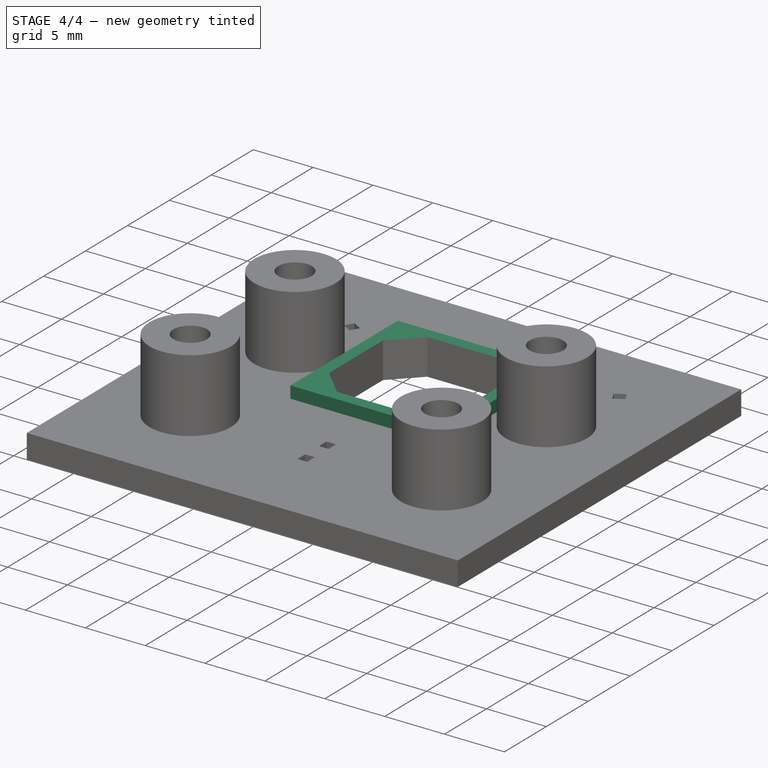
[diagram: stage 4 of 4 — iso view after this stage's code; geometry added in this stage tinted green]
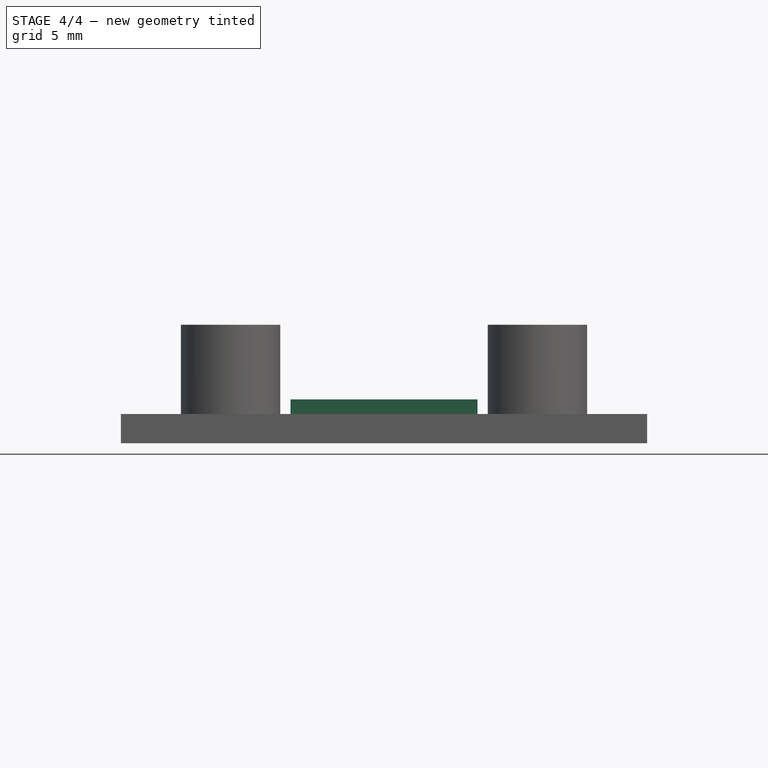
[diagram: stage 4 of 4 — front view after this stage's code; geometry added in this stage tinted green]
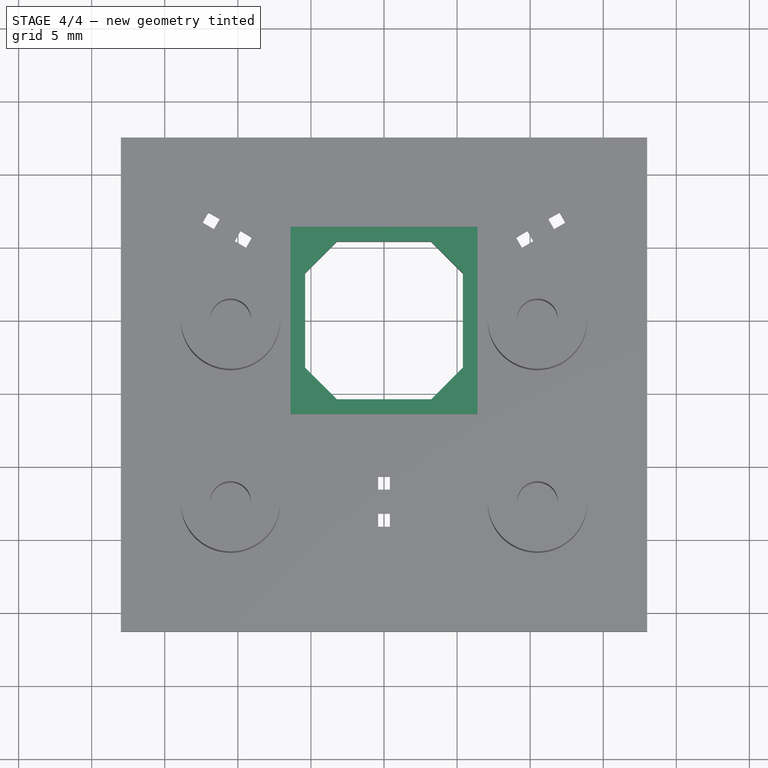
[diagram: stage 4 of 4 — top view after this stage's code; geometry added in this stage tinted green]
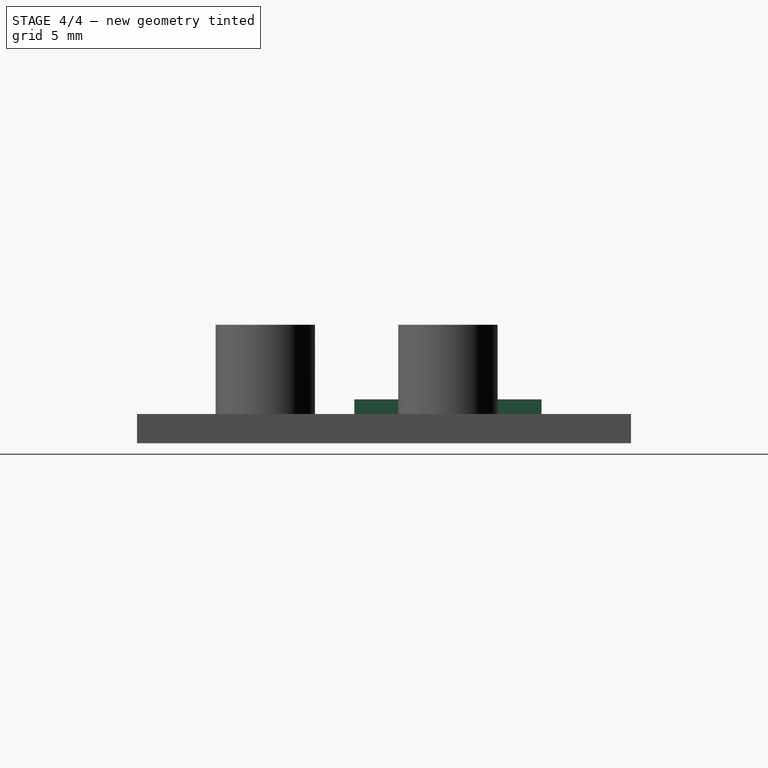
[diagram: stage 4 of 4 — right view after this stage's code; geometry added in this stage tinted green]
FEATURE [PartDesign::Plane] DatumPlane002
  Length = 60
  MapMode = 5
  Placement = pos=(0,-21.2818,0) rot=(1,0,0;1.5708rad)
  ResizeMode = 0
  Support = -> [Pocket]
  Width = 60
FEATURE [PartDesign::Fillet] Fillet002  label="rounded baseplate"
  Base = -> Pocket
  BaseFeature = -> Pocket
  Radius = 10
  Refine = true
  SupportTransform = false
  UseAllEdges = false
FEATURE [Sketcher::SketchObject] Sketch010  label="Stubbies"
  ExternalGeometry = -> [Fillet002]
  FullyConstrained = true
  MapMode = 5
  Placement = pos=(0,0,2) rot=(0,0,1;0rad)
  sketch-geometry (12):
    g0: LineSegment StartX=5.4 StartY=-3.22051 StartZ=0 EndX=5.4 EndY=3.23293 EndZ=0
    g1: LineSegment StartX=-5.4 StartY=3.22051 StartZ=0 EndX=-5.4 EndY=-3.23293 EndZ=0
    g2: LineSegment StartX=-3.22051 StartY=-5.4 StartZ=0 EndX=3.23293 EndY=-5.4 EndZ=0
    g3: LineSegment StartX=-3.23293 StartY=5.4 StartZ=0 EndX=-5.4 EndY=3.22051 EndZ=0
    g4: LineSegment StartX=3.23293 StartY=-5.4 StartZ=0 EndX=5.4 EndY=-3.22051 EndZ=0
    g5: LineSegment StartX=6.4 StartY=-6.4 StartZ=0 EndX=6.4 EndY=6.4 EndZ=0
    g6: LineSegment StartX=6.4 StartY=6.4 StartZ=0 EndX=-6.4 EndY=6.4 EndZ=0
    g7: LineSegment StartX=-6.4 StartY=6.4 StartZ=0 EndX=-6.4 EndY=-6.4 EndZ=0
    g8: LineSegment StartX=-6.4 StartY=-6.4 StartZ=0 EndX=6.4 EndY=-6.4 EndZ=0
    g9: LineSegment StartX=-3.22051 StartY=-5.4 StartZ=0 EndX=-5.4 EndY=-3.23293 EndZ=0
    g10: LineSegment StartX=3.22051 StartY=5.4 StartZ=0 EndX=-3.23293 EndY=5.4 EndZ=0
    g11: LineSegment StartX=3.22051 StartY=5.4 StartZ=0 EndX=5.4 EndY=3.23293 EndZ=0
  constraints (27):
    c: Coincident(g5,g6)
    c: Coincident(g6,g7)
    c: Coincident(g7,g8)
    c: Coincident(g8,g5)
    c: Vertical(g5)
    c: Vertical(g7)
    c: Horizontal(g6)
    c: Horizontal(g8)
    c: Equal(g8,g5)
    c: Symmetric(g7,g5,g-1)
    c: Coincident(g2,g4)
    c: Coincident(g4,g0)
    c: Coincident(g3,g1)
    c: Coincident(g9,g2)
    c: Coincident(g9,g1)
    c: Coincident(g10,g3)
    c: Coincident(g11,g10)
    c: Coincident(g11,g0)
    c: Coincident(g10,g-10)
    c: Coincident(g0,g-10)
    c: Coincident(g0,g-7)
    c: Coincident(g2,g-8)
    c: Coincident(g2,g-9)
    c: Coincident(g1,g-9)
    c: Coincident(g1,g-5)
    c: Coincident(g3,g-4)
    c: Distance(g7,g1) = 1
FEATURE [PartDesign::Pad] Pad003
  BaseFeature = -> Fillet002
  Direction = (0,0,1)
  Length = 1
  Length2 = 10
  Profile = -> Sketch010
  ReferenceAxis = -> Sketch010 [N_Axis]
  Refine = true
  Type = 0
FEATURE [PartDesign::Body] Body
  Group = -> [Sketch001,Sketch010,Sketch005,Sketch002,Pad,Sketch003,Sketch,Sketch004,DatumPlane,DatumPlane001,Sketch006,Sketch007,Sketch008,Groove,Groove001,Groove002,Pocket002,Pad001,Pocket,DatumPlane002,Fillet002,Pad003]
  Origin = -> Origin
  Tip = -> Pad003
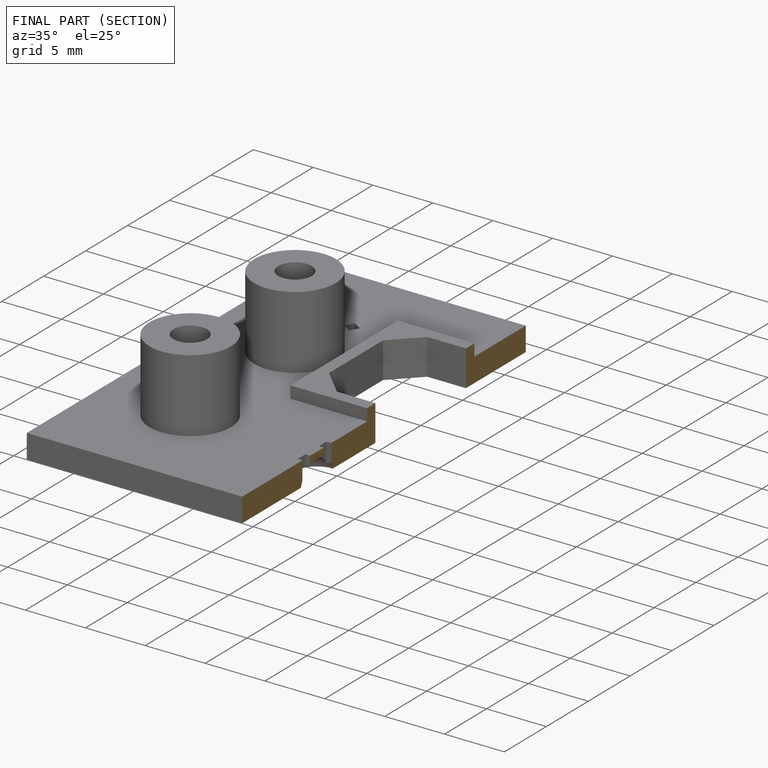
[diagram: finished part — half-section view (interior)]
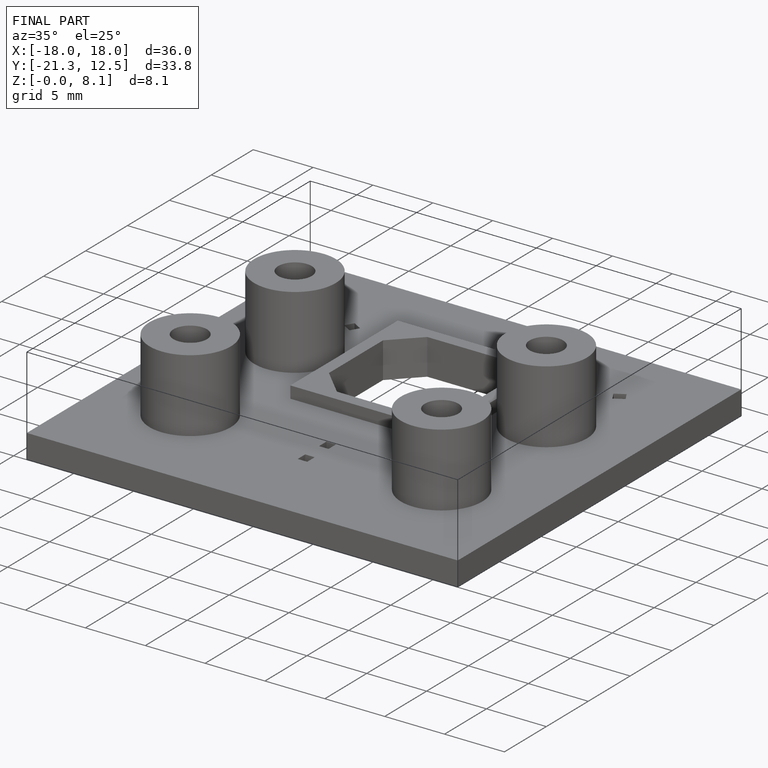
[diagram: finished part — iso view with bounding-box wireframe]
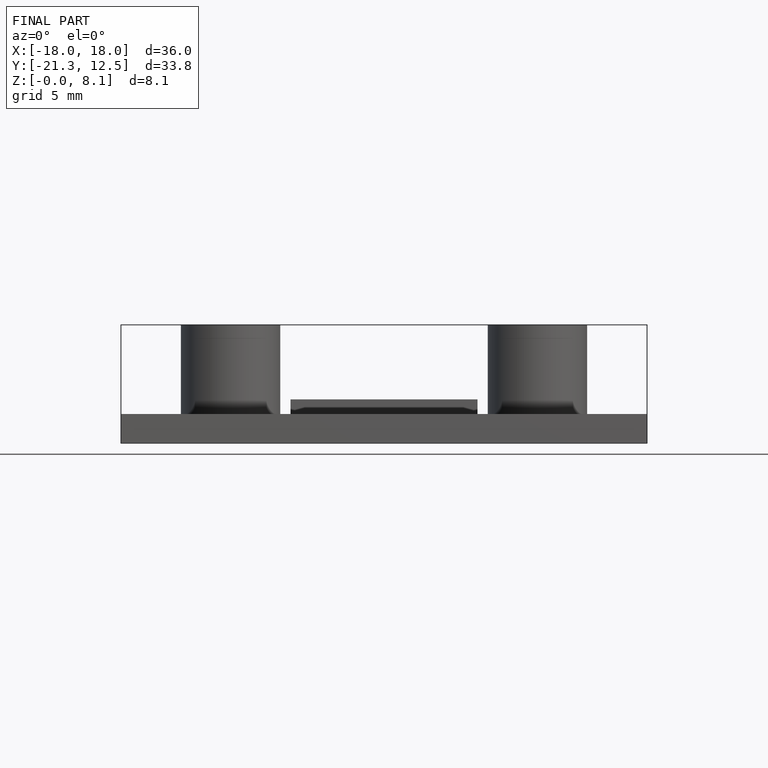
[diagram: finished part — front view with bounding-box wireframe]
